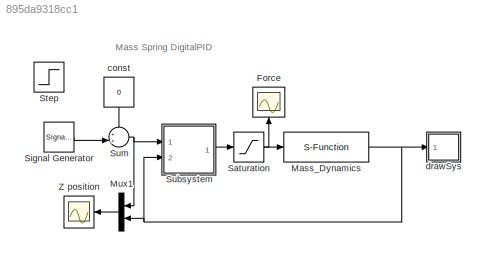
MODEL slx_895da9318cc1
KIND model
CONFIG AbsTol = auto
CONFIG EnableMultiTasking = on
CONFIG FixedStep = auto
CONFIG InitFcn = param
CONFIG MaxStep = auto
CONFIG MinStep = auto
CONFIG RelTol = 1e-3
CONFIG SampleTimeConstraint = Unconstrained
CONFIG Solver = ode45
CONFIG SolverName = ode45
CONFIG StartTime = 0.0
CONFIG StopTime = 50
BLOCK [Scope] Force
  NumInputPorts = 1
  Ports = [1]
  ScopeSpecificationString = Simulink.scopes.TimeScopeBlockCfg('CurrentConfiguration', extmgr.ConfigurationSet(extmgr.Configuration('Core','General UI',true),extmgr.Configuration('Core','Source UI',true),extmgr.Configuration('Sources','WiredSimulink',true,'DataLoggingVariableName','ScopeData1'),extmgr.Configuration('Visuals','Time Domain',true,'SerializedDisplays',{struct('MinYLimReal','-2.5','MaxYLimReal','2.5','YLabelReal',...<+1376ch>
BLOCK [S-Function] Mass_Dynamics
  EnableBusSupport = off
  FunctionName = mass_dynamics
  Parameters = P
  Ports = [1, 1]
  SFcnIsStateOwnerBlock = off
  SFunctionDeploymentMode = off
BLOCK [Mux] Mux1
  DisplayOption = bar
  Inputs = 2
  Ports = [2, 1]
BLOCK [Saturate] Saturation
  InputPortMap = u0
  LowerLimit = -2
  Ports = [1, 1]
  UpperLimit = 2
BLOCK [SignalGenerator] Signal Generator
  Amplitude = .5
  Frequency = .03
  Ports = [0, 1]
  WaveForm = square
BLOCK [Step] Step
  After = .5
  SampleTime = 0
  Time = 0
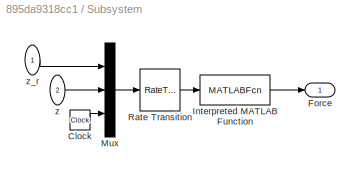
BLOCK [SubSystem] Subsystem
  Ports = [2, 1]
  RequestExecContextInheritance = off
  Variant = off
BLOCK [Clock] Subsystem/Clock
BLOCK [Outport] Subsystem/Force
  IconDisplay = Port number
BLOCK [MATLABFcn] Subsystem/Interpreted MATLAB Function
  MATLABFcn = mass_ctrl_state(u,P)
  Ports = [1, 1]
BLOCK [Mux] Subsystem/Mux
  DisplayOption = bar
  Inputs = 3
  Ports = [3, 1]
BLOCK [RateTransition] Subsystem/Rate Transition
  OutPortSampleTime = P.Ts
BLOCK [Inport] Subsystem/z
  IconDisplay = Port number
  Port = 2
BLOCK [Inport] Subsystem/z_r
  IconDisplay = Port number
BLOCK [Sum] Sum
  IconShape = round
  InputSameDT = off
  Inputs = ++|
  OutDataTypeStr = Inherit: Inherit via internal rule
  Ports = [2, 1]
  SaturateOnIntegerOverflow = off
BLOCK [Scope] Z position
  NumInputPorts = 1
  Ports = [1]
  ScopeSpecificationString = Simulink.scopes.TimeScopeBlockCfg('CurrentConfiguration', extmgr.ConfigurationSet(extmgr.Configuration('Core','General UI',true),extmgr.Configuration('Core','Source UI',true),extmgr.Configuration('Sources','WiredSimulink',true,'DataLoggingSaveFormat','StructureWithTime','DataLoggingLimitDataPoints',true,'DataLoggingDecimation','1','DataLoggingDecimateData',true,'DataLoggingVariableName','ScopeData...<+1727ch>
BLOCK [Constant] const
  Value = 0
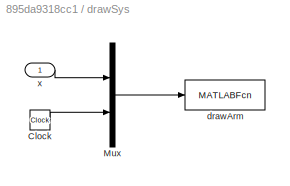
BLOCK [SubSystem] drawSys
  Ports = [1]
  RequestExecContextInheritance = off
  Variant = off
BLOCK [Clock] drawSys/Clock
BLOCK [Mux] drawSys/Mux
  DisplayOption = bar
  Inputs = 2
  Ports = [2, 1]
BLOCK [MATLABFcn] drawSys/drawArm
  MATLABFcn = drawMassSys(u)
  OutputDimensions = 0
  Ports = [1]
  SampleTime = 0.1
BLOCK [Inport] drawSys/x
  IconDisplay = Port number
ANNOTATION (root): Mass Spring DigitalPID
NET Mass_Dynamics:1 -> Mux1:2, Subsystem:2, drawSys:1
LINE Mux1:1 -> Z position:1
NET Saturation:1 -> Force:1, Mass_Dynamics:1
LINE Signal Generator:1 -> Sum:2
LINE Subsystem/Clock:1 -> Subsystem/Mux:3
LINE Subsystem/Interpreted MATLAB Function:1 -> Subsystem/Force:1
LINE Subsystem/Mux:1 -> Subsystem/Rate Transition:1
LINE Subsystem/Rate Transition:1 -> Subsystem/Interpreted MATLAB Function:1
LINE Subsystem/z:1 -> Subsystem/Mux:2
LINE Subsystem/z_r:1 -> Subsystem/Mux:1
LINE Subsystem:1 -> Saturation:1
NET Sum:1 -> Mux1:1, Subsystem:1
LINE const:1 -> Sum:1
LINE drawSys/Clock:1 -> drawSys/Mux:2
LINE drawSys/Mux:1 -> drawSys/drawArm:1
LINE drawSys/x:1 -> drawSys/Mux:1
note: NET lines group one-source signal fan-out (src -> all destinations, sorted); 1:1 wires keep LINE
